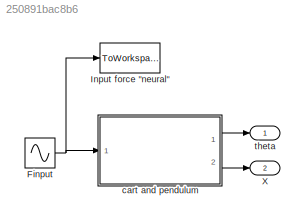
MODEL slx_250891bac8b6
KIND model
CONFIG AbsTol = auto
CONFIG FixedStep = auto
CONFIG MaxStep = auto
CONFIG MinStep = auto
CONFIG RelTol = 1e-3
CONFIG SampleTimeConstraint = Unconstrained
CONFIG Solver = ode23
CONFIG SolverMode = Auto
CONFIG SolverName = ode23
CONFIG StartTime = 0.0
CONFIG StopTime = tsimu
BLOCK [Sin] Finput
  Amplitude = A*(mp+mc)*(2*pi*f)*(2*pi*f)
  Frequency = 2*pi*f
  Phase = pi/2
  Ports = [0, 1]
  SampleTime = 0
BLOCK [ToWorkspace] Input force "neural"
  FixptAsFi = on
  MaxDataPoints = inf
  Ports = [1]
  SampleTime = -1
  Save2DSignal = 3-D array (concatenate along third dimension)
  SaveFormat = Timeseries
  VariableName = Finput
BLOCK [Outport] X
  IconDisplay = Port number
  Port = 2
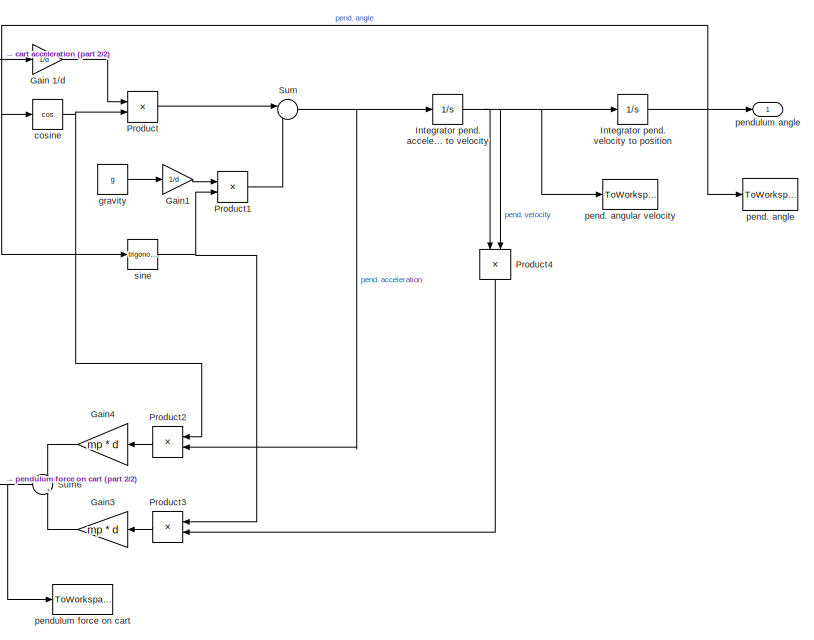
[diagram: cart and pendulum - part 1/2, middle right region]
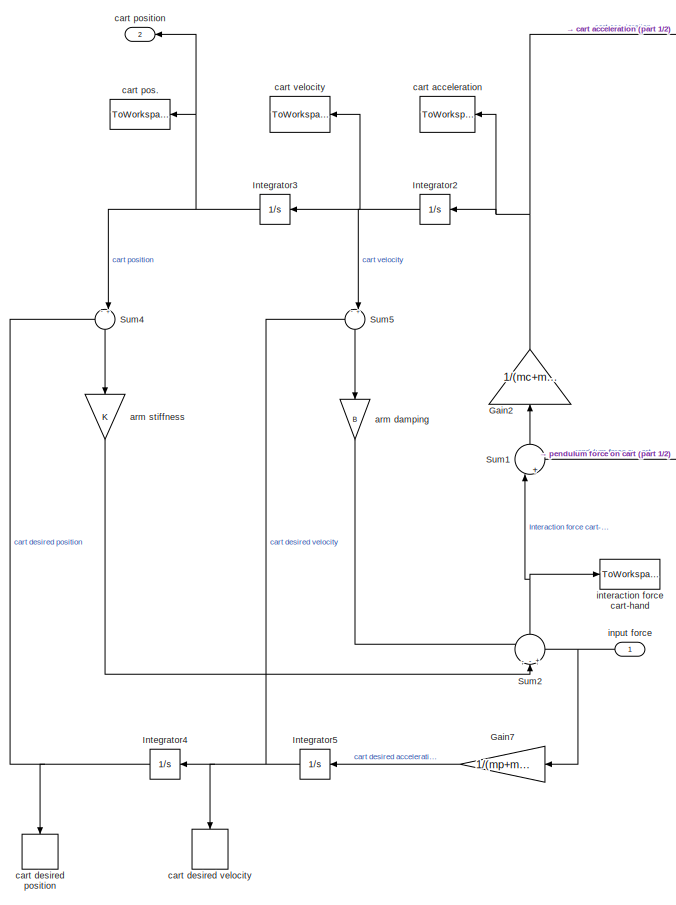
[diagram: cart and pendulum - part 2/2, left side, full height]
BLOCK [SubSystem] cart and pendulum
  Ports = [1, 2]
  RequestExecContextInheritance = off
  Variant = off
BLOCK [Gain] cart and pendulum/Gain 1//d
  Gain = 1/d
  OutDataTypeStr = Inherit: Inherit via internal rule
  ParamDataTypeStr = Inherit: Inherit via internal rule
  SaturateOnIntegerOverflow = off
BLOCK [Gain] cart and pendulum/Gain1
  Gain = 1/d
  OutDataTypeStr = Inherit: Inherit via internal rule
  ParamDataTypeStr = Inherit: Inherit via internal rule
  SaturateOnIntegerOverflow = off
BLOCK [Gain] cart and pendulum/Gain2
  Gain = 1/(mc+mp)
  OutDataTypeStr = Inherit: Inherit via internal rule
  ParamDataTypeStr = Inherit: Inherit via internal rule
  SaturateOnIntegerOverflow = off
BLOCK [Gain] cart and pendulum/Gain3
  Gain = mp * d
  OutDataTypeStr = Inherit: Inherit via internal rule
  ParamDataTypeStr = Inherit: Inherit via internal rule
  SaturateOnIntegerOverflow = off
BLOCK [Gain] cart and pendulum/Gain4
  Gain = mp * d
  OutDataTypeStr = Inherit: Inherit via internal rule
  ParamDataTypeStr = Inherit: Inherit via internal rule
  SaturateOnIntegerOverflow = off
BLOCK [Gain] cart and pendulum/Gain7
  Gain = 1/(mp+mc)
  OutDataTypeStr = Inherit: Inherit via internal rule
  ParamDataTypeStr = Inherit: Inherit via internal rule
  SaturateOnIntegerOverflow = off
BLOCK [Integrator] cart and pendulum/Integrator pend. acceleration to velocity
  InitialCondition = omega_0
  Ports = [1, 1]
BLOCK [Integrator] cart and pendulum/Integrator pend. velocity to position
  InitialCondition = theta_0
  Ports = [1, 1]
BLOCK [Integrator] cart and pendulum/Integrator2
  InitialCondition = cart_vel_0
  Ports = [1, 1]
BLOCK [Integrator] cart and pendulum/Integrator3
  InitialCondition = cart_pos_0
  Ports = [1, 1]
BLOCK [Integrator] cart and pendulum/Integrator4
  InitialCondition = cart_pos_0
  Ports = [1, 1]
BLOCK [Integrator] cart and pendulum/Integrator5
  InitialCondition = cart_vel_0
  Ports = [1, 1]
BLOCK [Product] cart and pendulum/Product
  InputSameDT = off
  OutDataTypeStr = Inherit: Inherit via internal rule
  Ports = [2, 1]
  RndMeth = Floor
  SaturateOnIntegerOverflow = off
BLOCK [Product] cart and pendulum/Product1
  InputSameDT = off
  OutDataTypeStr = Inherit: Inherit via internal rule
  Ports = [2, 1]
  RndMeth = Floor
  SaturateOnIntegerOverflow = off
BLOCK [Product] cart and pendulum/Product2
  InputSameDT = off
  OutDataTypeStr = Inherit: Inherit via internal rule
  Ports = [2, 1]
  RndMeth = Floor
  SaturateOnIntegerOverflow = off
BLOCK [Product] cart and pendulum/Product3
  InputSameDT = off
  OutDataTypeStr = Inherit: Inherit via internal rule
  Ports = [2, 1]
  RndMeth = Floor
  SaturateOnIntegerOverflow = off
BLOCK [Product] cart and pendulum/Product4
  InputSameDT = off
  OutDataTypeStr = Inherit: Inherit via internal rule
  Ports = [2, 1]
  RndMeth = Floor
  SaturateOnIntegerOverflow = off
BLOCK [Sum] cart and pendulum/Sum
  IconShape = round
  InputSameDT = off
  Inputs = |--
  OutDataTypeStr = Inherit: Inherit via internal rule
  Ports = [2, 1]
  SaturateOnIntegerOverflow = off
BLOCK [Sum] cart and pendulum/Sum1
  IconShape = round
  InputSameDT = off
  Inputs = |++
  OutDataTypeStr = Inherit: Inherit via internal rule
  Ports = [2, 1]
  SaturateOnIntegerOverflow = off
BLOCK [Sum] cart and pendulum/Sum2
  IconShape = round
  InputSameDT = off
  Inputs = --+
  OutDataTypeStr = Inherit: Inherit via internal rule
  Ports = [3, 1]
  SaturateOnIntegerOverflow = off
BLOCK [Sum] cart and pendulum/Sum4
  IconShape = round
  InputSameDT = off
  Inputs = -+|
  OutDataTypeStr = Inherit: Inherit via internal rule
  Ports = [2, 1]
  SaturateOnIntegerOverflow = off
BLOCK [Sum] cart and pendulum/Sum5
  IconShape = round
  InputSameDT = off
  Inputs = -+|
  OutDataTypeStr = Inherit: Inherit via internal rule
  Ports = [2, 1]
  SaturateOnIntegerOverflow = off
BLOCK [Sum] cart and pendulum/Sum6
  IconShape = round
  InputSameDT = off
  Inputs = -|+
  OutDataTypeStr = Inherit: Inherit via internal rule
  Ports = [2, 1]
  SaturateOnIntegerOverflow = off
BLOCK [Gain] cart and pendulum/arm damping
  Gain = B
  OutDataTypeStr = Inherit: Inherit via internal rule
  ParamDataTypeStr = Inherit: Inherit via internal rule
  SaturateOnIntegerOverflow = off
BLOCK [Gain] cart and pendulum/arm stiffness
  Gain = K
  OutDataTypeStr = Inherit: Inherit via internal rule
  ParamDataTypeStr = Inherit: Inherit via internal rule
  SaturateOnIntegerOverflow = off
BLOCK [ToWorkspace] cart and pendulum/cart acceleration
  FixptAsFi = on
  MaxDataPoints = inf
  Ports = [1]
  SampleTime = -1
  Save2DSignal = 3-D array (concatenate along third dimension)
  SaveFormat = Timeseries
  VariableName = ddX
BLOCK [ToWorkspace] cart and pendulum/cart desired position 
  FixptAsFi = on
  MaxDataPoints = inf
  Ports = [1]
  SampleTime = -1
  Save2DSignal = 3-D array (concatenate along third dimension)
  SaveFormat = Timeseries
  VariableName = Xo
BLOCK [ToWorkspace] cart and pendulum/cart desired velocity
  FixptAsFi = on
  MaxDataPoints = inf
  Ports = [1]
  SampleTime = -1
  Save2DSignal = 3-D array (concatenate along third dimension)
  SaveFormat = Timeseries
  VariableName = dXo
BLOCK [ToWorkspace] cart and pendulum/cart pos.
  FixptAsFi = on
  MaxDataPoints = inf
  Ports = [1]
  SampleTime = -1
  Save2DSignal = 3-D array (concatenate along third dimension)
  SaveFormat = Timeseries
  VariableName = X
BLOCK [Outport] cart and pendulum/cart position
  IconDisplay = Port number
  Port = 2
BLOCK [ToWorkspace] cart and pendulum/cart velocity
  FixptAsFi = on
  MaxDataPoints = inf
  Ports = [1]
  SampleTime = -1
  Save2DSignal = 3-D array (concatenate along third dimension)
  SaveFormat = Timeseries
  VariableName = dX
BLOCK [Trigonometry] cart and pendulum/cosine
  Operator = cos
  Ports = [1, 1]
BLOCK [Constant] cart and pendulum/gravity
  Value = g
BLOCK [Inport] cart and pendulum/input force
  IconDisplay = Port number
BLOCK [ToWorkspace] cart and pendulum/interaction force cart-hand
  FixptAsFi = on
  MaxDataPoints = inf
  Ports = [1]
  SampleTime = -1
  Save2DSignal = 3-D array (concatenate along third dimension)
  SaveFormat = Timeseries
  VariableName = Finter
BLOCK [ToWorkspace] cart and pendulum/pend. angle
  FixptAsFi = on
  MaxDataPoints = inf
  Ports = [1]
  SampleTime = -1
  Save2DSignal = 3-D array (concatenate along third dimension)
  SaveFormat = Timeseries
  VariableName = theta
BLOCK [ToWorkspace] cart and pendulum/pend. angular velocity
  FixptAsFi = on
  MaxDataPoints = inf
  Ports = [1]
  SampleTime = -1
  Save2DSignal = 3-D array (concatenate along third dimension)
  SaveFormat = Timeseries
  VariableName = omega
BLOCK [Outport] cart and pendulum/pendulum angle
  IconDisplay = Port number
BLOCK [ToWorkspace] cart and pendulum/pendulum force on cart
  FixptAsFi = on
  MaxDataPoints = inf
  Ports = [1]
  SampleTime = -1
  Save2DSignal = 3-D array (concatenate along third dimension)
  SaveFormat = Timeseries
  VariableName = Fpendulum
BLOCK [Trigonometry] cart and pendulum/sine
  Ports = [1, 1]
BLOCK [Outport] theta
  IconDisplay = Port number
NET Finput:1 -> Input force "neural":1, cart and pendulum:1
LINE cart and pendulum/Gain 1//d:1 -> cart and pendulum/Product:1
LINE cart and pendulum/Gain1:1 -> cart and pendulum/Product1:1
NET cart and pendulum/Gain2:1 -> cart and pendulum/Gain 1//d:1, cart and pendulum/Integrator2:1, cart and pendulum/cart acceleration:1
LINE cart and pendulum/Gain3:1 -> cart and pendulum/Sum6:2
LINE cart and pendulum/Gain4:1 -> cart and pendulum/Sum6:1
LINE cart and pendulum/Gain7:1 -> cart and pendulum/Integrator5:1
NET cart and pendulum/Integrator pend. acceleration to velocity:1 -> cart and pendulum/Integrator pend. velocity to position:1, cart and pendulum/Product4:1, cart and pendulum/Product4:2, cart and pendulum/pend. angular velocity:1
NET cart and pendulum/Integrator pend. velocity to position:1 -> cart and pendulum/cosine:1, cart and pendulum/pend. angle:1, cart and pendulum/pendulum angle:1, cart and pendulum/sine:1
NET cart and pendulum/Integrator2:1 -> cart and pendulum/Integrator3:1, cart and pendulum/Sum5:2, cart and pendulum/cart velocity:1
NET cart and pendulum/Integrator3:1 -> cart and pendulum/Sum4:2, cart and pendulum/cart pos.:1, cart and pendulum/cart position:1
NET cart and pendulum/Integrator4:1 -> cart and pendulum/Sum4:1, cart and pendulum/cart desired position :1
NET cart and pendulum/Integrator5:1 -> cart and pendulum/Integrator4:1, cart and pendulum/Sum5:1, cart and pendulum/cart desired velocity:1
LINE cart and pendulum/Product1:1 -> cart and pendulum/Sum:2
LINE cart and pendulum/Product2:1 -> cart and pendulum/Gain4:1
LINE cart and pendulum/Product3:1 -> cart and pendulum/Gain3:1
LINE cart and pendulum/Product4:1 -> cart and pendulum/Product3:2
LINE cart and pendulum/Product:1 -> cart and pendulum/Sum:1
LINE cart and pendulum/Sum1:1 -> cart and pendulum/Gain2:1
NET cart and pendulum/Sum2:1 -> cart and pendulum/Sum1:1, cart and pendulum/interaction force cart-hand:1
LINE cart and pendulum/Sum4:1 -> cart and pendulum/arm stiffness:1
LINE cart and pendulum/Sum5:1 -> cart and pendulum/arm damping:1
NET cart and pendulum/Sum6:1 -> cart and pendulum/Sum1:2, cart and pendulum/pendulum force on cart:1
NET cart and pendulum/Sum:1 -> cart and pendulum/Integrator pend. acceleration to velocity:1, cart and pendulum/Product2:2
LINE cart and pendulum/arm damping:1 -> cart and pendulum/Sum2:1
LINE cart and pendulum/arm stiffness:1 -> cart and pendulum/Sum2:2
NET cart and pendulum/cosine:1 -> cart and pendulum/Product2:1, cart and pendulum/Product:2
LINE cart and pendulum/gravity:1 -> cart and pendulum/Gain1:1
NET cart and pendulum/input force:1 -> cart and pendulum/Gain7:1, cart and pendulum/Sum2:3
NET cart and pendulum/sine:1 -> cart and pendulum/Product1:2, cart and pendulum/Product3:1
LINE cart and pendulum:1 -> theta:1
LINE cart and pendulum:2 -> X:1
note: NET lines group one-source signal fan-out (src -> all destinations, sorted); 1:1 wires keep LINE
